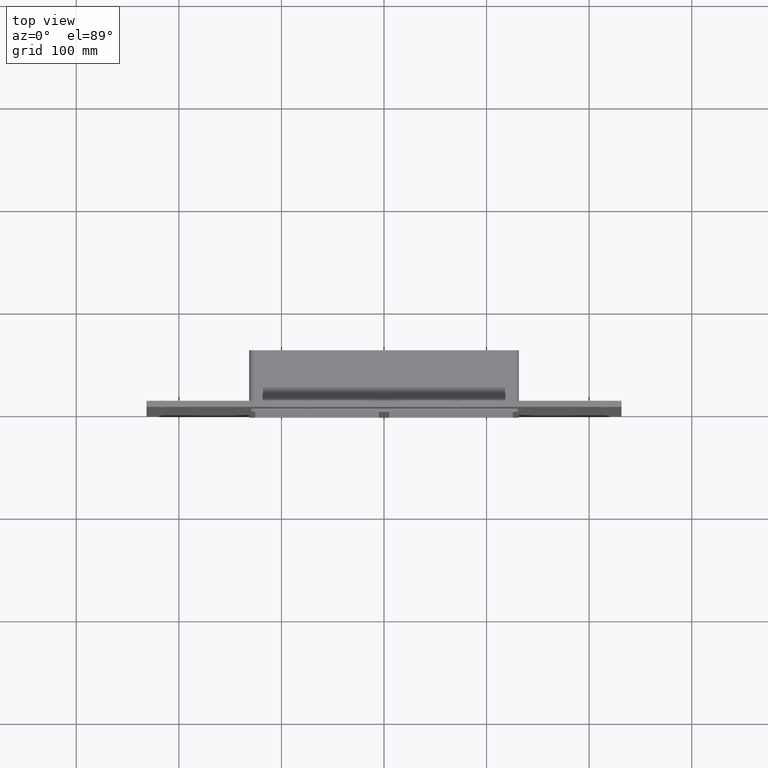
[diagram: clean part render]
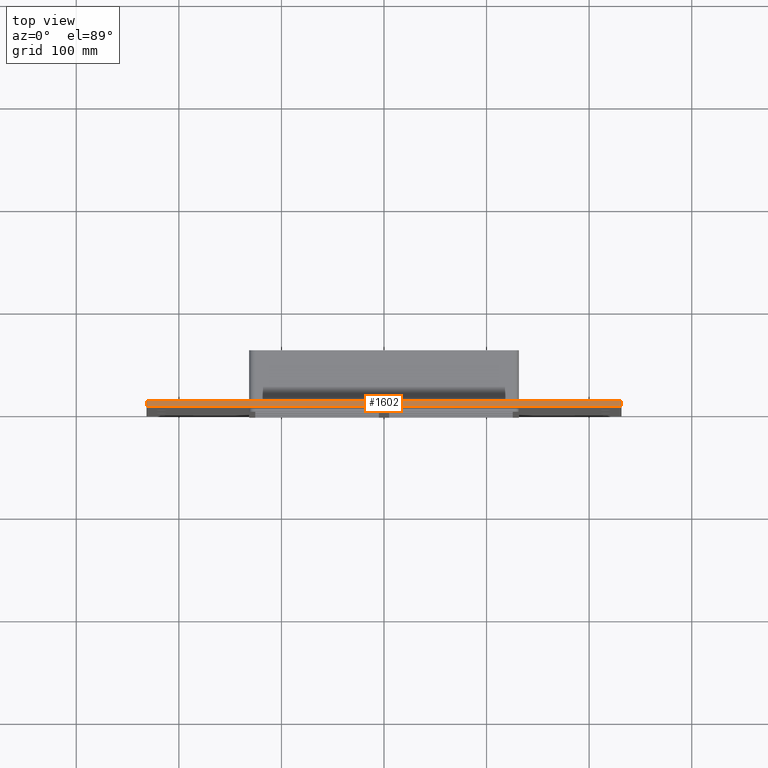
[diagram: same view with one face highlighted and labeled with its STEP entity id]
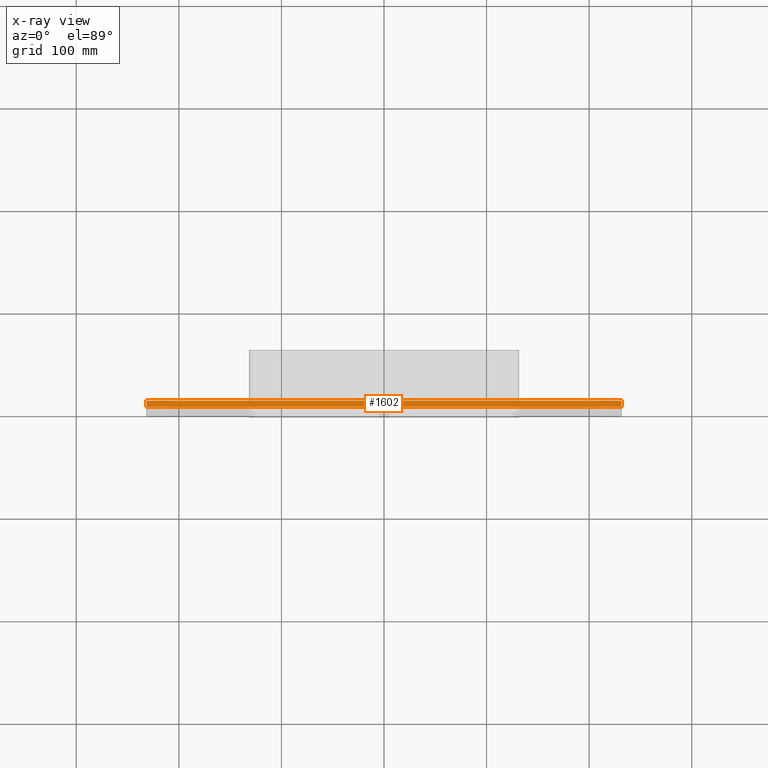
[diagram: x-ray of the same camera — body ghosted, the highlighted face saturated]
A machine part, top view. The second image highlights one B-rep face of the part: STEP entity #1602.
The next image is the same camera in x-ray: the body ghosted, the highlighted face saturated — about 0% of this face is hidden behind the body in this view.
In plain terms, the highlighted planar face has unit normal (0, 0, 1).
Its self-contained STEP definition (entity closure, byte-faithful):
#1248=CARTESIAN_POINT('',(-231.5,6.000000000000001,269.5));
#1249=VERTEX_POINT('',#1248);
#1250=CARTESIAN_POINT('',(231.5,6.000000000000001,269.5));
#1251=VERTEX_POINT('',#1250);
#1252=CARTESIAN_POINT('',(-231.5,6.000000000000001,269.5));
#1253=DIRECTION('',(1.0,0.0,0.0));
#1254=VECTOR('',#1253,463.0);
#1255=LINE('',#1252,#1254);
#1256=EDGE_CURVE('',#1249,#1251,#1255,.T.);
#1394=CARTESIAN_POINT('',(-231.5,0.0,269.5));
#1395=VERTEX_POINT('',#1394);
#1396=CARTESIAN_POINT('',(231.49999999999994,0.0,269.5));
#1397=VERTEX_POINT('',#1396);
#1398=CARTESIAN_POINT('',(-231.5,0.0,269.5));
#1399=DIRECTION('',(1.0,0.0,0.0));
#1400=VECTOR('',#1399,463.0);
#1401=LINE('',#1398,#1400);
#1402=EDGE_CURVE('',#1395,#1397,#1401,.T.);
#1541=CARTESIAN_POINT('',(-231.5,0.0,269.5));
#1542=DIRECTION('',(0.0,1.0,0.0));
#1543=VECTOR('',#1542,6.000000000000001);
#1544=LINE('',#1541,#1543);
#1545=EDGE_CURVE('',#1395,#1249,#1544,.T.);
#1582=CARTESIAN_POINT('',(231.49999999999994,0.0,269.5));
#1583=DIRECTION('',(0.0,1.0,0.0));
#1584=VECTOR('',#1583,6.000000000000001);
#1585=LINE('',#1582,#1584);
#1586=EDGE_CURVE('',#1397,#1251,#1585,.T.);
#1591=CARTESIAN_POINT('',(-231.5,0.0,269.5));
#1592=DIRECTION('',(0.0,0.0,1.0));
#1593=DIRECTION('',(1.0,0.0,0.0));
#1594=AXIS2_PLACEMENT_3D('',#1591,#1592,#1593);
#1595=PLANE('',#1594);
#1596=ORIENTED_EDGE('',*,*,#1402,.T.);
#1597=ORIENTED_EDGE('',*,*,#1586,.T.);
#1598=ORIENTED_EDGE('',*,*,#1256,.F.);
#1599=ORIENTED_EDGE('',*,*,#1545,.F.);
#1600=EDGE_LOOP('',(#1596,#1597,#1598,#1599));
#1601=FACE_OUTER_BOUND('',#1600,.T.);
#1602=ADVANCED_FACE('',(#1601),#1595,.T.);